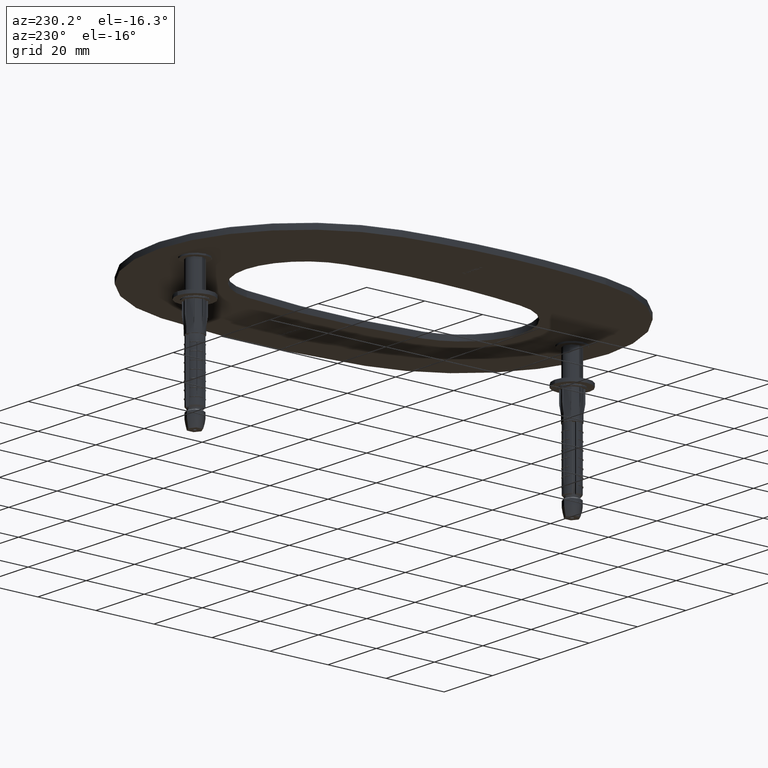
[diagram: clean part render]
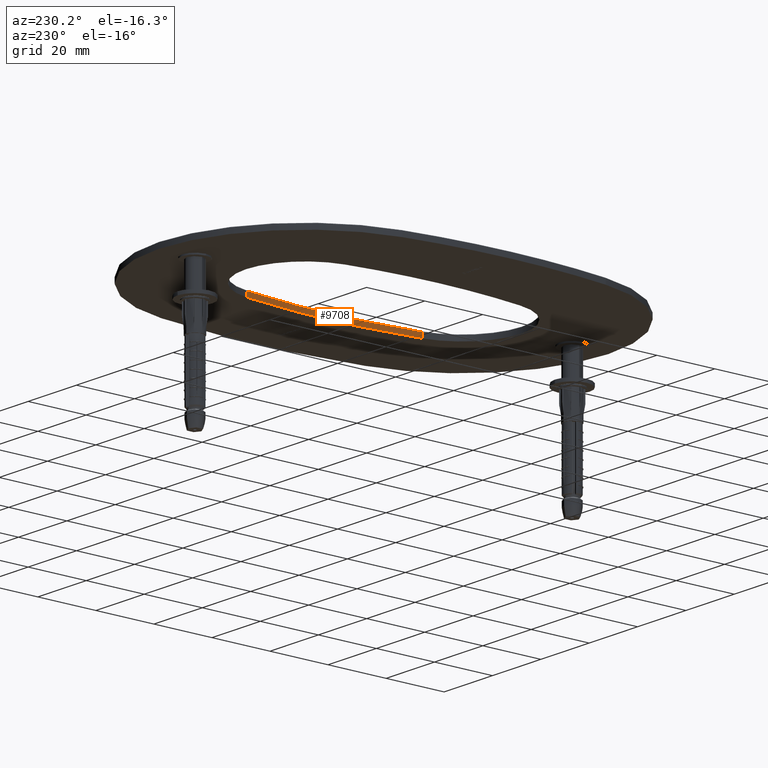
[diagram: same view with one face highlighted and labeled with its STEP entity id]
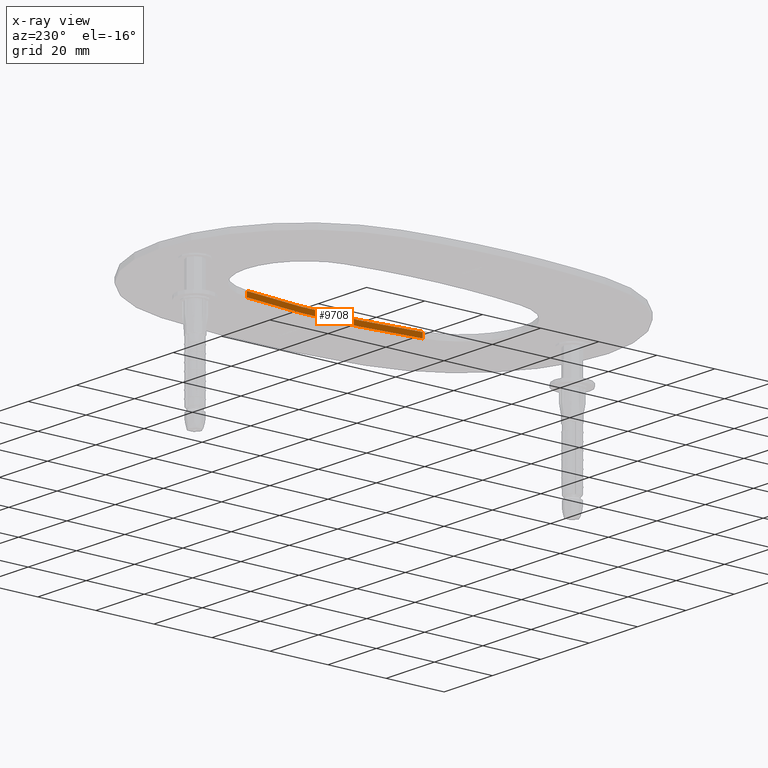
[diagram: x-ray of the same camera — body ghosted, the highlighted face saturated]
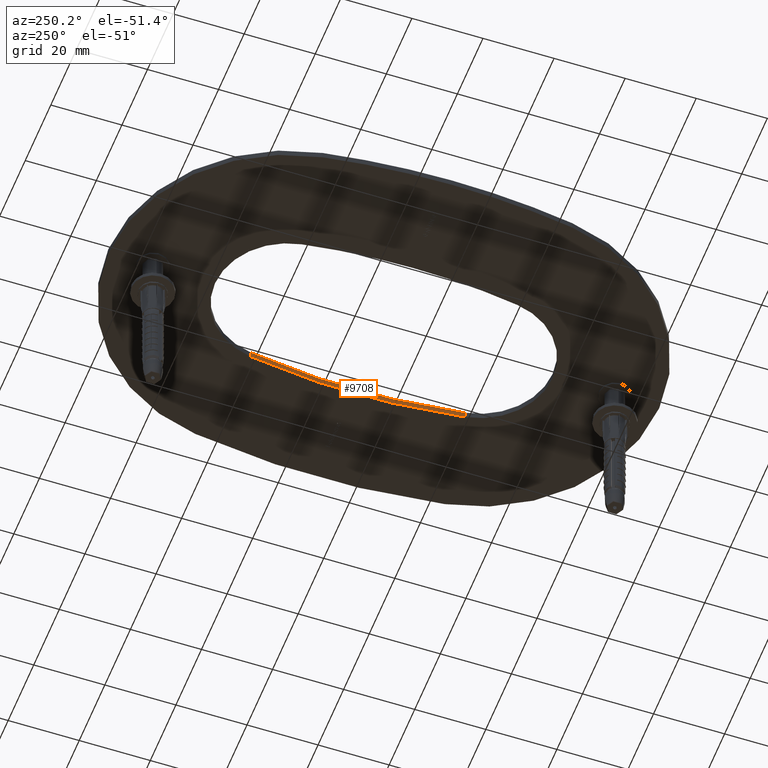
[diagram: same view with one face highlighted and labeled with its STEP entity id]
A machine part, auxiliary view. The second image highlights one B-rep face of the part: STEP entity #9708.
The next image is the same camera in x-ray: the body ghosted, the highlighted face saturated — about 0% of this face is hidden behind the body in this view.
A second angle (auxiliary view) of the same face is appended — the face is thin or edge-on in the first view.
In plain terms, the highlighted cylindrical surface (partial cylindrical patch) has radius 189.745 mm, axis along (-0, -0, -1).
Its self-contained STEP definition (entity closure, byte-faithful):
#355 = ORIENTED_EDGE ( 'NONE', *, *, #5194, .F. ) ;
#888 = EDGE_CURVE ( 'NONE', #37409, #16500, #34031, .T. ) ;
#898 = LINE ( 'NONE', #10436, #9452 ) ;
#1912 = DIRECTION ( 'NONE',  ( -1.000000000000000000, 4.461488758493736437E-15, 0.000000000000000000 ) ) ;
#3799 = EDGE_CURVE ( 'NONE', #11550, #18306, #5158, .T. ) ;
#5158 = CIRCLE ( 'NONE', #21801, 189.7449712643650912 ) ;
#5194 = EDGE_CURVE ( 'NONE', #11550, #37409, #10186, .T. ) ;
#5203 = CARTESIAN_POINT ( 'NONE',  ( -167.1199712643650344, 77.50000000000000000, 1.750000000000000000 ) ) ;
#5742 = CYLINDRICAL_SURFACE ( 'NONE', #12105, 189.7449712643650912 ) ;
#6824 = CARTESIAN_POINT ( 'NONE',  ( 20.18727069582862299, 107.8175069783151798, 1.750000000000000000 ) ) ;
#8062 = CARTESIAN_POINT ( 'NONE',  ( -167.1199712643650344, 77.50000000000000000, 2.000000000000000000 ) ) ;
#8923 = DIRECTION ( 'NONE',  ( -1.000000000000000000, 0.000000000000000000, 0.000000000000000000 ) ) ;
#9452 = VECTOR ( 'NONE', #22315, 1000.000000000000000 ) ;
#9708 = ADVANCED_FACE ( 'NONE', ( #19464 ), #5742, .F. ) ;
#10186 = LINE ( 'NONE', #16120, #21076 ) ;
#10436 = CARTESIAN_POINT ( 'NONE',  ( 20.18727069582862299, 107.8175069783151798, 2.000000000000000000 ) ) ;
#10495 = EDGE_LOOP ( 'NONE', ( #355, #27729, #32693, #18243 ) ) ;
#11363 = EDGE_CURVE ( 'NONE', #18306, #16500, #898, .T. ) ;
#11376 = DIRECTION ( 'NONE',  ( -0.000000000000000000, -0.000000000000000000, -1.000000000000000000 ) ) ;
#11550 = VERTEX_POINT ( 'NONE', #29621 ) ;
#12105 = AXIS2_PLACEMENT_3D ( 'NONE', #8062, #11376, #17191 ) ;
#12393 = AXIS2_PLACEMENT_3D ( 'NONE', #33146, #33275, #8923 ) ;
#16120 = CARTESIAN_POINT ( 'NONE',  ( 20.18727069582860167, 47.18249302168470649, 2.000000000000000000 ) ) ;
#16500 = VERTEX_POINT ( 'NONE', #25765 ) ;
#17191 = DIRECTION ( 'NONE',  ( -1.000000000000000000, 0.000000000000000000, 0.000000000000000000 ) ) ;
#17943 = CARTESIAN_POINT ( 'NONE',  ( 20.18727069582860167, 47.18249302168470649, 0.000000000000000000 ) ) ;
#18243 = ORIENTED_EDGE ( 'NONE', *, *, #888, .F. ) ;
#18306 = VERTEX_POINT ( 'NONE', #6824 ) ;
#19058 = DIRECTION ( 'NONE',  ( -0.000000000000000000, -0.000000000000000000, -1.000000000000000000 ) ) ;
#19464 = FACE_OUTER_BOUND ( 'NONE', #10495, .T. ) ;
#21076 = VECTOR ( 'NONE', #19058, 1000.000000000000000 ) ;
#21801 = AXIS2_PLACEMENT_3D ( 'NONE', #5203, #32238, #1912 ) ;
#22315 = DIRECTION ( 'NONE',  ( -0.000000000000000000, -0.000000000000000000, -1.000000000000000000 ) ) ;
#25765 = CARTESIAN_POINT ( 'NONE',  ( 20.18727069582862299, 107.8175069783151798, 0.000000000000000000 ) ) ;
#27729 = ORIENTED_EDGE ( 'NONE', *, *, #3799, .T. ) ;
#29621 = CARTESIAN_POINT ( 'NONE',  ( 20.18727069582860167, 47.18249302168470649, 1.750000000000000000 ) ) ;
#32238 = DIRECTION ( 'NONE',  ( 0.000000000000000000, 0.000000000000000000, 1.000000000000000000 ) ) ;
#32693 = ORIENTED_EDGE ( 'NONE', *, *, #11363, .T. ) ;
#33146 = CARTESIAN_POINT ( 'NONE',  ( -167.1199712643650344, 77.50000000000000000, 0.000000000000000000 ) ) ;
#33275 = DIRECTION ( 'NONE',  ( 0.000000000000000000, 0.000000000000000000, 1.000000000000000000 ) ) ;
#34031 = CIRCLE ( 'NONE', #12393, 189.7449712643650912 ) ;
#37409 = VERTEX_POINT ( 'NONE', #17943 ) ;